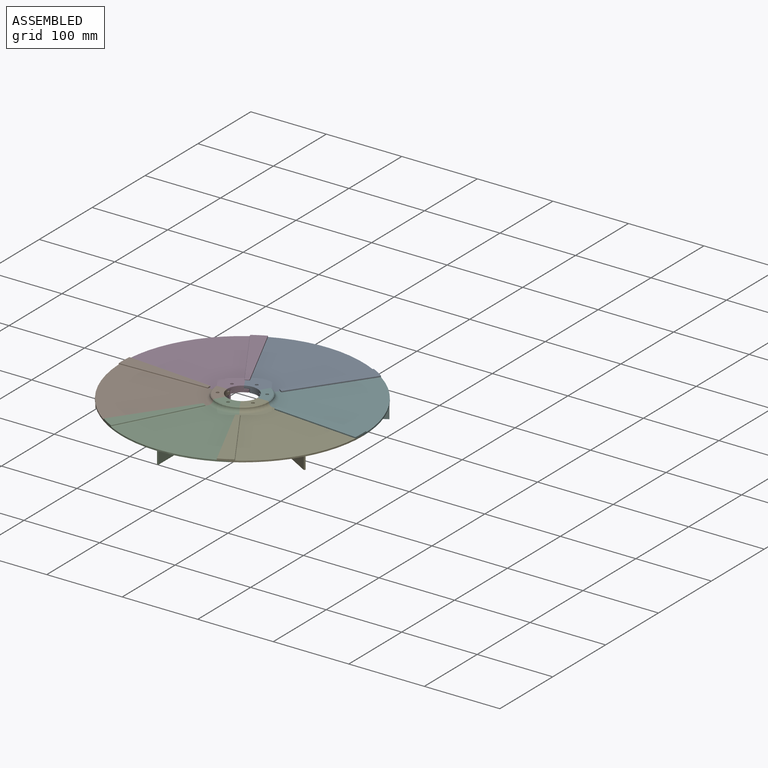
[diagram: assembled view]
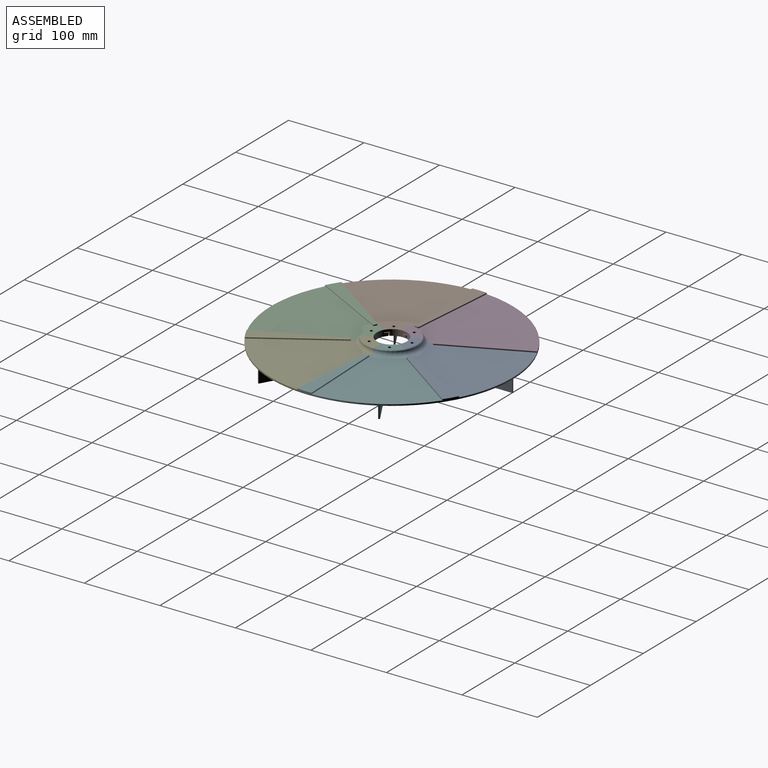
[diagram: assembled view, second angle]
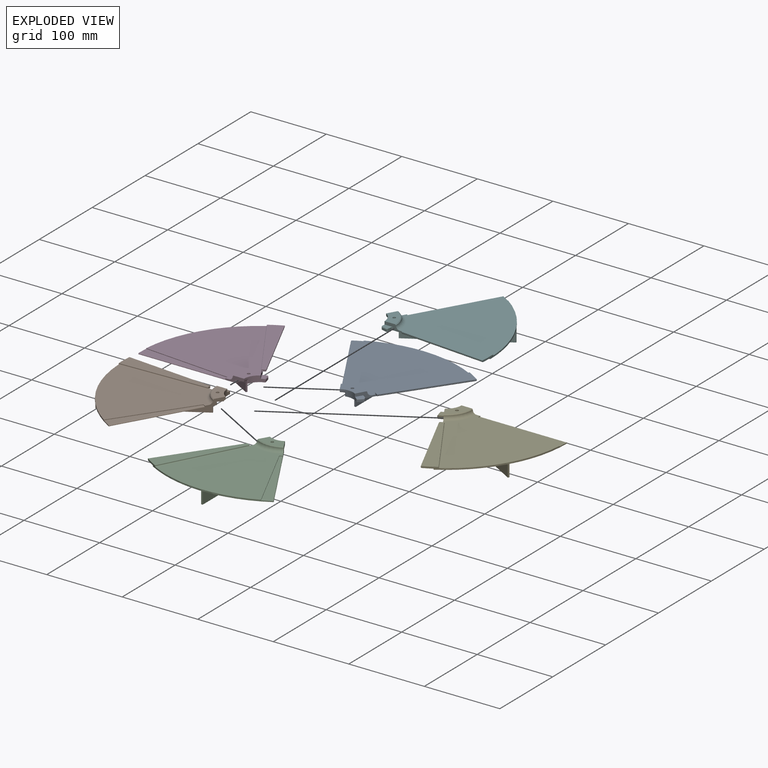
[diagram: exploded view]
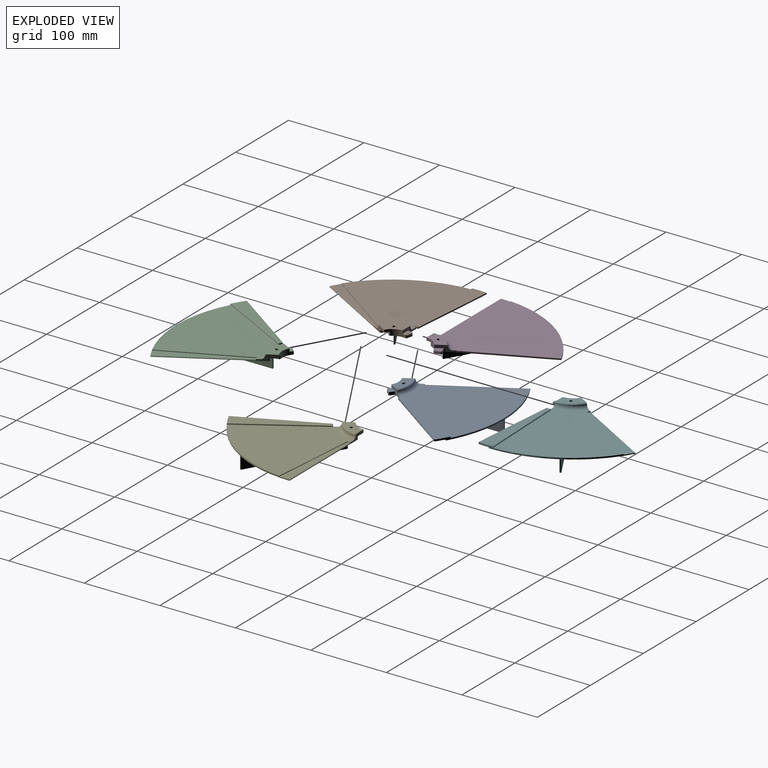
[diagram: exploded view, second angle]
ASSEMBLY  parts=6 mates=5
PART A: 48 faces, bbox 171.8x145.9x26.6 mm
  f0: plane 160x145.27mm, normal (0,0,-1), area 12854.9mm2, adj f1,f3,f4,f6,f12,f15,f16,f18
  f1: cylinder r=160mm len=171.77mm, axis (0,0,1), area 364.2mm2, adj f0,f2,f3,f4,f28,f30,f31,f32
  f2: plane 141.85x125.36mm, normal (0,0,1), area 11008.7mm2, adj f1,f3,f4,f7,f33,f34,f37,f38
  f3: plane 121.24x70mm, normal (0.87,-0.5,0), area 243mm2, adj f0,f1,f2,f5,f6,f7,f8,f14
  f4: plane 121.24x70mm, normal (-0.87,-0.5,0), area 127.3mm2, adj f0,f1,f2,f5,f6,f7,f8,f17
  f5: plane 34x16.68mm, normal (0,0,1), area 383.3mm2, adj f3,f4,f6,f8,f9
  f6: cylinder r=20mm len=23.12mm, axis (0,0,1), area 144.5mm2, adj f0,f3,f4,f5,f14,f21,f22,f25
  f7: torus R=40mm, axis (0,0,-1), area 302.8mm2, adj f2,f3,f4,f8
  f8: cone r=34mm half-angle=45deg, axis (0,0,-1), area 51.1mm2, adj f3,f4,f5,f7
  f9: cylinder r=2mm len=4mm, axis (0,0,-1), area 37.7mm2, adj f5,f13
  f10: cylinder r=4mm len=8mm, axis (0,0,-1), area 75.4mm2, adj f11,f12
  f11: plane 8x8mm, normal (0,0,-1), area 22mm2, adj f10,f13
  f12: torus R=5mm, axis (0,0,1), area 43.1mm2, adj f0,f10
  f13: torus R=3mm, axis (0,0,-1), area 23.3mm2, adj f9,f11
  f14: plane 12.09x10.12mm, normal (0,0,1), area 50.9mm2, adj f3,f6,f15,f24,f26,f27
  f15: cylinder r=30mm len=4mm, axis (0,0,1), area 19.4mm2, adj f0,f14,f24,f27
  f16: plane 4.96x4.96mm, normal (0.71,-0.71,0), area 17.5mm2, adj f0,f25,f26,f27
  f17: plane 10.53x10.13mm, normal (0,0,-1), area 61mm2, adj f4,f18,f19,f20,f22,f23
  f18: cylinder r=30mm len=4.97mm, axis (0,0,-1), area 21.5mm2, adj f0,f17,f20,f23
  f19: plane 6.8x4mm, normal (-0.97,-0.24,0), area 28.1mm2, adj f0,f17,f21,f22,f23
  f20: cylinder r=1.5mm len=4mm, axis (0,0,-1), area 9.1mm2, adj f0,f4,f17,f18
  f21: cylinder r=1.5mm len=5.5mm, axis (0,0,1), area 10.3mm2, adj f0,f6,f19,f22
  f22: torus R=21.5mm, axis (0,0,-1), area 14.7mm2, adj f4,f6,f17,f19,f21
  f23: cylinder r=1.5mm len=4mm, axis (0,0,-1), area 9.7mm2, adj f0,f17,f18,f19
  f24: cylinder r=1.5mm len=4mm, axis (0,0,1), area 9.1mm2, adj f0,f3,f14,f15
  f25: cylinder r=1.5mm len=4mm, axis (0,0,1), area 7.7mm2, adj f0,f6,f16,f26
  f26: cylinder r=1.5mm len=8.14mm, axis (0.71,0.71,0), area 21mm2, adj f6,f14,f16,f25,f27
  f27: cylinder r=1.5mm len=4mm, axis (0,0,1), area 8.5mm2, adj f0,f14,f15,f16,f26
  f28: plane 101.54x53.99mm, normal (-0.88,0.47,0), area 57.5mm2, adj f1,f29,f30,f38
  f29: cylinder r=45mm len=3.88mm, axis (0,0,1), area 7.4mm2, adj f3,f28,f30,f31,f37,f39,f40
  f30: plane 104.03x70.65mm, normal (0,0,1), area 1439.9mm2, adj f1,f28,f29,f32,f39
  f31: plane 101.14x68.45mm, normal (0,0,-1), area 913.7mm2, adj f1,f3,f29,f40
  f32: plane 93.39x65.39mm, normal (0.82,-0.57,0), area 142.5mm2, adj f1,f30,f39,f40
  f33: cylinder r=45mm len=3.48mm, axis (0,0,-1), area 3.2mm2, adj f2,f4,f34,f35,f36
  f34: plane 104.23x48.6mm, normal (-0.91,-0.42,0), area 86.3mm2, adj f1,f2,f33,f35
  f35: plane 105.55x60.11mm, normal (0,0,1), area 913.7mm2, adj f1,f33,f34,f36
  f36: cylinder r=1mm len=100.1mm, axis (-0.5,0.87,0), area 180.6mm2, adj f1,f4,f33,f35
  f37: torus R=44mm, axis (0,0,-1), area 3mm2, adj f2,f3,f29,f38
  f38: cylinder r=1mm len=102.9mm, axis (0.47,0.88,0), area 181.2mm2, adj f1,f2,f28,f37
  f39: cylinder r=1mm len=2.25mm, axis (0,0,1), area 2.9mm2, adj f29,f30,f32,f40
  f40: cylinder r=1mm len=94.79mm, axis (-0.57,-0.82,0), area 180.1mm2, adj f1,f29,f31,f32,f39
  f41: plane 1x0mm, normal (0,0,1), area 0mm2, adj f1,f43,f46
  f42: plane 1x0mm, normal (0,0,1), area 0mm2, adj f1,f44,f46
  f43: plane 128x16mm, normal (1,0,0), area 2048mm2, adj f0,f41,f45,f46,f47
  f44: plane 128x16mm, normal (-1,0,0), area 2048mm2, adj f0,f42,f45,f46,f47
  f45: plane 128x2mm, normal (0,0,-1), area 256mm2, adj f43,f44,f46,f47
  f46: plane 16x2mm, normal (0,1,0), area 32mm2, adj f41,f42,f43,f44,f45
  f47: plane 16x2mm, normal (0,-1,0), area 32mm2, adj f0,f43,f44,f45
PART B: same geometry as A
PART C: same geometry as A
PART D: same geometry as A
PART E: same geometry as A
PART F: same geometry as A
PLACE A t=(-154.99,-151.35,-31.94)mm
PLACE B rot(axis=(0,0,1),120deg) t=(-154.99,-151.35,-31.94)mm
PLACE C rot(axis=(0,0,1),180deg) t=(-154.99,-151.35,-31.94)mm
PLACE D rot(axis=(0,0,1),60deg) t=(-154.99,-151.35,-31.94)mm
PLACE E rot(axis=(0,0,-1),120deg) t=(-154.99,-151.35,-31.94)mm
PLACE F rot(axis=(0,0,-1),60deg) t=(-154.99,-151.35,-31.94)mm
MATE fastened C.f3 <-> B.f4  axis (-0.87,0.5,0) through (-170.72,-178.6,-31.94)mm
MATE fastened E.f3 <-> C.f4  axis (-0.87,-0.5,0) through (-139.26,-178.6,-31.94)mm
MATE fastened B.f3 <-> D.f4  axis (0,1,0) through (-186.45,-151.35,-31.94)mm
MATE fastened E.f4 <-> F.f3  axis (0,1,0) through (-123.53,-151.35,-31.94)mm
MATE fastened D.f3 <-> A.f4  axis (0.87,0.5,0) through (-170.72,-124.1,-31.94)mm
